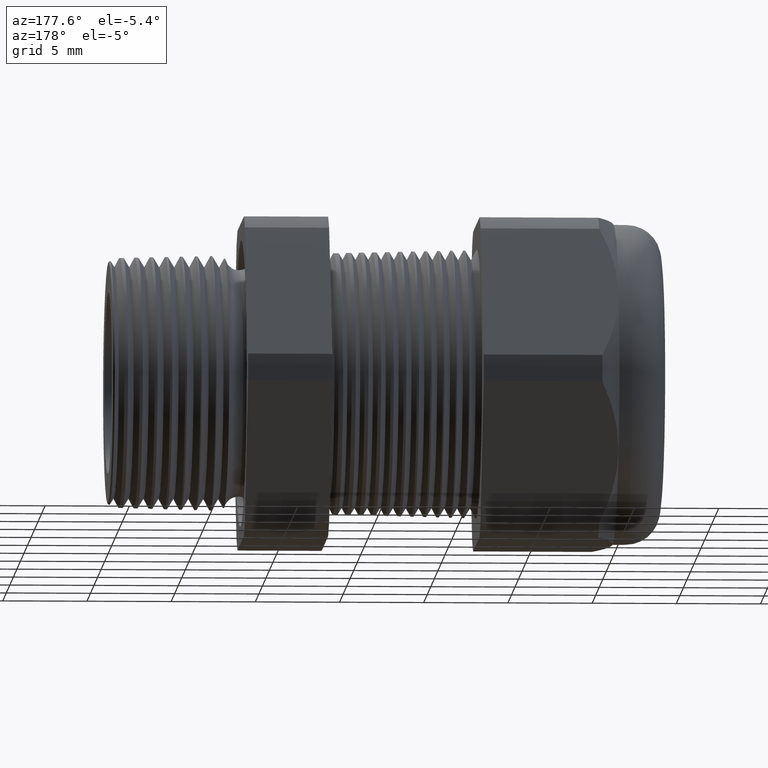
[diagram: clean part render]
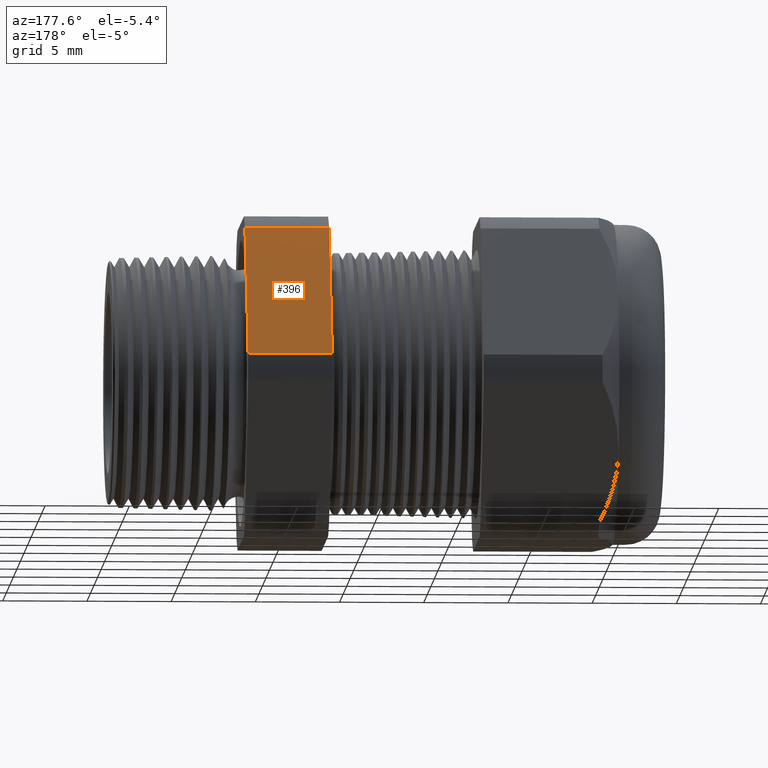
[diagram: same view with one face highlighted and labeled with its STEP entity id]
A machine part, auxiliary view. The second image highlights one B-rep face of the part: STEP entity #396.
In plain terms, the highlighted planar face has unit normal (0, 0.866, 0.5).
Its self-contained STEP definition (entity closure, byte-faithful):
#341 = EDGE_CURVE ( 'NONE', #4909, #342, #2012, .T. ) ;
#342 = VERTEX_POINT ( 'NONE', #2004 ) ;
#396 = ADVANCED_FACE ( 'NONE', ( #2117 ), #2116, .T. ) ;
#397 = EDGE_LOOP ( 'NONE', ( #398, #399, #400, #403 ) ) ;
#398 = ORIENTED_EDGE ( 'NONE', *, *, #341, .F. ) ;
#399 = ORIENTED_EDGE ( 'NONE', *, *, #4993, .F. ) ;
#400 = ORIENTED_EDGE ( 'NONE', *, *, #401, .T. ) ;
#401 = EDGE_CURVE ( 'NONE', #4991, #402, #2111, .T. ) ;
#402 = VERTEX_POINT ( 'NONE', #2107 ) ;
#403 = ORIENTED_EDGE ( 'NONE', *, *, #404, .F. ) ;
#404 = EDGE_CURVE ( 'NONE', #342, #402, #2106, .T. ) ;
#2004 = CARTESIAN_POINT ( 'NONE',  ( -0.5068503937007874400, 0.2344281053908206000, 0.3439586107409877100 ) ) ;
#2005 = DIRECTION ( 'NONE',  ( -1.000000000000000000, 0.0000000000000000000, 0.0000000000000000000 ) ) ;
#2006 = VECTOR ( 'NONE', #2005, 39.37007874015748100 ) ;
#2007 = CARTESIAN_POINT ( 'NONE',  ( 0.0000000000000000000, 0.2344281053908206000, 0.3439586107409877100 ) ) ;
#2012 = LINE ( 'NONE', #2007, #2006 ) ;
#2103 = DIRECTION ( 'NONE',  ( 0.0000000000000000000, 0.4999999999999998300, -0.8660254037844386000 ) ) ;
#2104 = VECTOR ( 'NONE', #2103, 39.37007874015748900 ) ;
#2105 = CARTESIAN_POINT ( 'NONE',  ( -0.5068503937007874400, 0.5122595264191646100, -0.1372595264191644500 ) ) ;
#2106 = LINE ( 'NONE', #2105, #2104 ) ;
#2107 = CARTESIAN_POINT ( 'NONE',  ( -0.5068503937007874400, 0.4150909474475088000, 0.03104138925901233200 ) ) ;
#2108 = DIRECTION ( 'NONE',  ( -1.000000000000000000, 0.0000000000000000000, 0.0000000000000000000 ) ) ;
#2109 = VECTOR ( 'NONE', #2108, 39.37007874015748100 ) ;
#2110 = CARTESIAN_POINT ( 'NONE',  ( 0.0000000000000000000, 0.4150909474475088000, 0.03104138925901233200 ) ) ;
#2111 = LINE ( 'NONE', #2110, #2109 ) ;
#2112 = DIRECTION ( 'NONE',  ( 0.0000000000000000000, -0.4999999999999998300, 0.8660254037844386000 ) ) ;
#2113 = DIRECTION ( 'NONE',  ( 0.0000000000000000000, 0.8660254037844387100, 0.4999999999999998900 ) ) ;
#2114 = CARTESIAN_POINT ( 'NONE',  ( 0.0000000000000000000, 0.2344281053908206000, 0.3439586107409877100 ) ) ;
#2115 = AXIS2_PLACEMENT_3D ( 'NONE', #2114, #2113, #2112 ) ;
#2116 = PLANE ( 'NONE',  #2115 ) ;
#2117 = FACE_OUTER_BOUND ( 'NONE', #397, .T. ) ;
#4282 = CARTESIAN_POINT ( 'NONE',  ( -0.3100000000000000000, 0.2344281053908206000, 0.3439586107409877100 ) ) ;
#4474 = DIRECTION ( 'NONE',  ( 0.0000000000000000000, -0.4999999999999998300, 0.8660254037844386000 ) ) ;
#4475 = VECTOR ( 'NONE', #4474, 39.37007874015748900 ) ;
#4476 = CARTESIAN_POINT ( 'NONE',  ( -0.3100000000000000000, 0.5122595264191646100, -0.1372595264191644500 ) ) ;
#4477 = LINE ( 'NONE', #4476, #4475 ) ;
#4478 = CARTESIAN_POINT ( 'NONE',  ( -0.3100000000000000000, 0.4150909474475088000, 0.03104138925901233200 ) ) ;
#4909 = VERTEX_POINT ( 'NONE', #4282 ) ;
#4991 = VERTEX_POINT ( 'NONE', #4478 ) ;
#4993 = EDGE_CURVE ( 'NONE', #4991, #4909, #4477, .T. ) ;